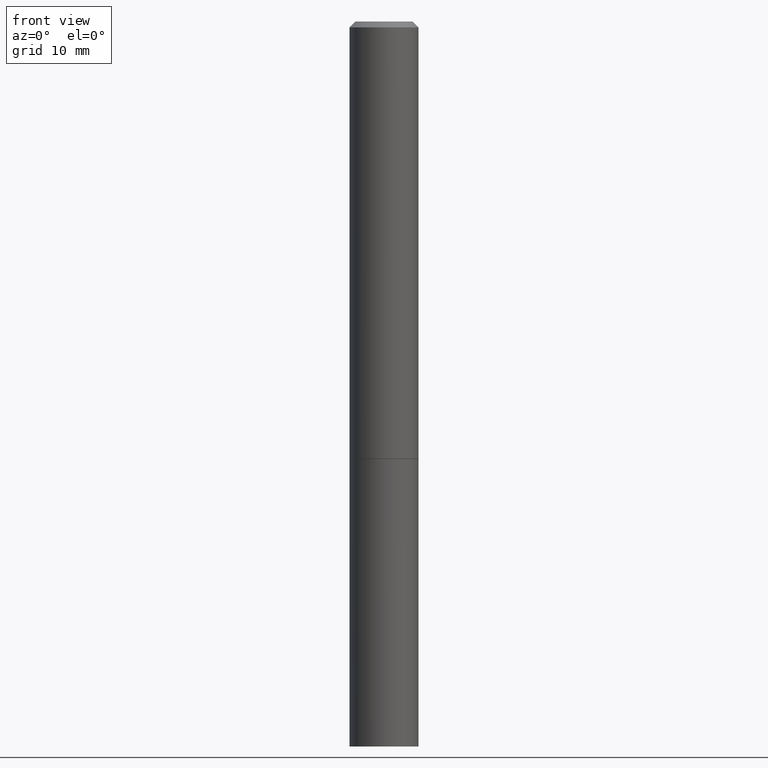
[diagram: clean part render]
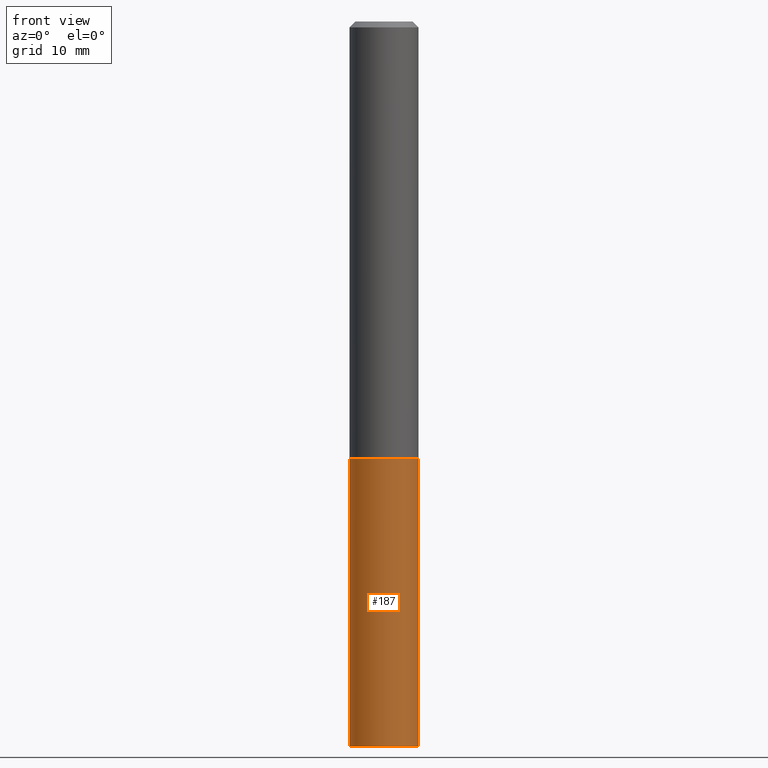
[diagram: same view with one face highlighted and labeled with its STEP entity id]
A machine part, front view. The second image highlights one B-rep face of the part: STEP entity #187.
In plain terms, the highlighted cylindrical surface (edge-blend (fillet) strip) has radius 2.9997 mm, axis along (-0, 0, 1).
Its self-contained STEP definition (entity closure, byte-faithful):
#17 = ORIENTED_EDGE ( 'NONE', *, *, #153, .F. ) ;
#22 = CARTESIAN_POINT ( 'NONE',  ( -0.1180999999999999966, 8.391509709326782957E-16, -5.809262341591043784E-30 ) ) ;
#32 = AXIS2_PLACEMENT_3D ( 'NONE', #132, #241, #268 ) ;
#53 = VERTEX_POINT ( 'NONE', #93 ) ;
#54 = DIRECTION ( 'NONE',  ( -2.445468806185136877E-29, 3.491481338843145188E-15, 1.000000000000000000 ) ) ;
#77 = EDGE_CURVE ( 'NONE', #53, #319, #190, .T. ) ;
#86 = DIRECTION ( 'NONE',  ( -2.445468806185136877E-29, 3.491481338843145188E-15, 1.000000000000000000 ) ) ;
#93 = CARTESIAN_POINT ( 'NONE',  ( -0.1180999999999999966, -6.102437652888322939E-15, -2.480300000000000171 ) ) ;
#107 = VECTOR ( 'NONE', #54, 39.37007874015748143 ) ;
#109 = FACE_OUTER_BOUND ( 'NONE', #256, .T. ) ;
#111 = CYLINDRICAL_SURFACE ( 'NONE', #207, 0.1180999999999999966 ) ;
#116 = CIRCLE ( 'NONE', #285, 0.1180999999999999966 ) ;
#132 = CARTESIAN_POINT ( 'NONE',  ( 6.065496279980994755E-29, -8.659921164732655335E-15, -2.480300000000000171 ) ) ;
#153 = EDGE_CURVE ( 'NONE', #53, #323, #271, .T. ) ;
#183 = EDGE_CURVE ( 'NONE', #323, #306, #116, .T. ) ;
#187 = ADVANCED_FACE ( 'NONE', ( #109 ), #111, .T. ) ;
#190 = CIRCLE ( 'NONE', #32, 0.1180999999999999966 ) ;
#203 = CARTESIAN_POINT ( 'NONE',  ( 0.1180999999999999966, -6.047943975144094411E-15, -1.496000000000000441 ) ) ;
#204 = EDGE_CURVE ( 'NONE', #319, #306, #282, .T. ) ;
#207 = AXIS2_PLACEMENT_3D ( 'NONE', #228, #345, #340 ) ;
#228 = CARTESIAN_POINT ( 'NONE',  ( 0.000000000000000000, 0.000000000000000000, 0.000000000000000000 ) ) ;
#241 = DIRECTION ( 'NONE',  ( -2.445468806185136597E-29, 3.491481338843145583E-15, 1.000000000000000000 ) ) ;
#246 = CARTESIAN_POINT ( 'NONE',  ( 3.658421334052965286E-29, -5.223256082909346937E-15, -1.496000000000000441 ) ) ;
#251 = DIRECTION ( 'NONE',  ( -2.445468806185136597E-29, 3.491481338843145583E-15, 1.000000000000000000 ) ) ;
#254 = CARTESIAN_POINT ( 'NONE',  ( 0.1180999999999999966, -8.246878922347480654E-16, 5.758764772215000440E-30 ) ) ;
#256 = EDGE_LOOP ( 'NONE', ( #17, #276, #310, #277 ) ) ;
#266 = VECTOR ( 'NONE', #86, 39.37007874015748143 ) ;
#267 = CARTESIAN_POINT ( 'NONE',  ( 0.1180999999999999966, -9.484609056967403598E-15, -2.480300000000000171 ) ) ;
#268 = DIRECTION ( 'NONE',  ( 1.000000000000000000, -6.982962677686273021E-15, 0.000000000000000000 ) ) ;
#271 = LINE ( 'NONE', #22, #107 ) ;
#276 = ORIENTED_EDGE ( 'NONE', *, *, #77, .T. ) ;
#277 = ORIENTED_EDGE ( 'NONE', *, *, #183, .F. ) ;
#282 = LINE ( 'NONE', #254, #266 ) ;
#285 = AXIS2_PLACEMENT_3D ( 'NONE', #246, #251, #348 ) ;
#306 = VERTEX_POINT ( 'NONE', #203 ) ;
#310 = ORIENTED_EDGE ( 'NONE', *, *, #204, .T. ) ;
#319 = VERTEX_POINT ( 'NONE', #267 ) ;
#323 = VERTEX_POINT ( 'NONE', #355 ) ;
#340 = DIRECTION ( 'NONE',  ( 1.000000000000000000, -6.982962677686266711E-15, 4.876176775795936353E-29 ) ) ;
#345 = DIRECTION ( 'NONE',  ( -2.445468806185136597E-29, 3.491481338843145583E-15, 1.000000000000000000 ) ) ;
#348 = DIRECTION ( 'NONE',  ( 1.000000000000000000, -6.982962677686265133E-15, 0.000000000000000000 ) ) ;
#355 = CARTESIAN_POINT ( 'NONE',  ( -0.1180999999999999966, -6.102437652888322939E-15, -1.496000000000000441 ) ) ;